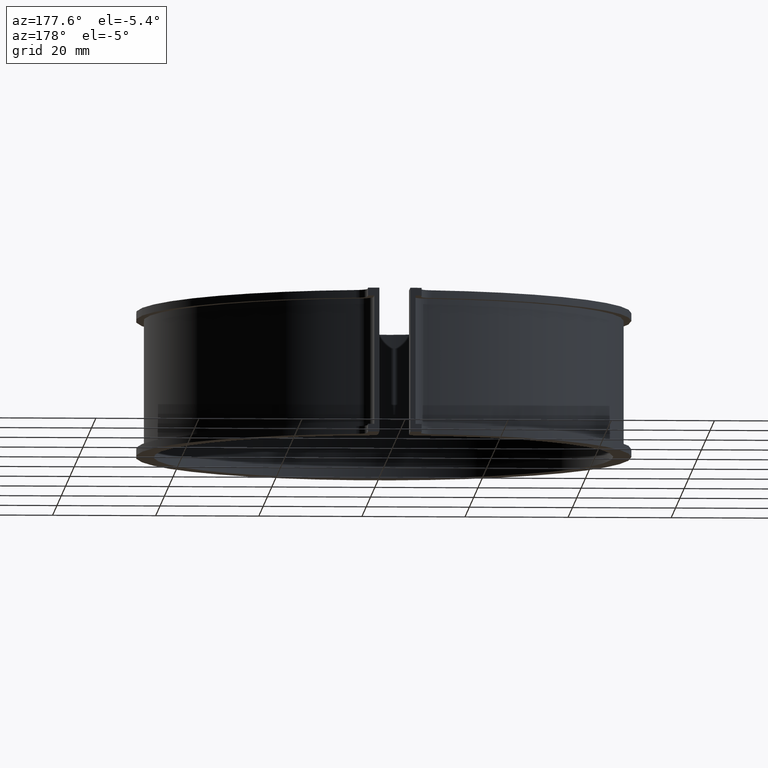
[diagram: clean part render]
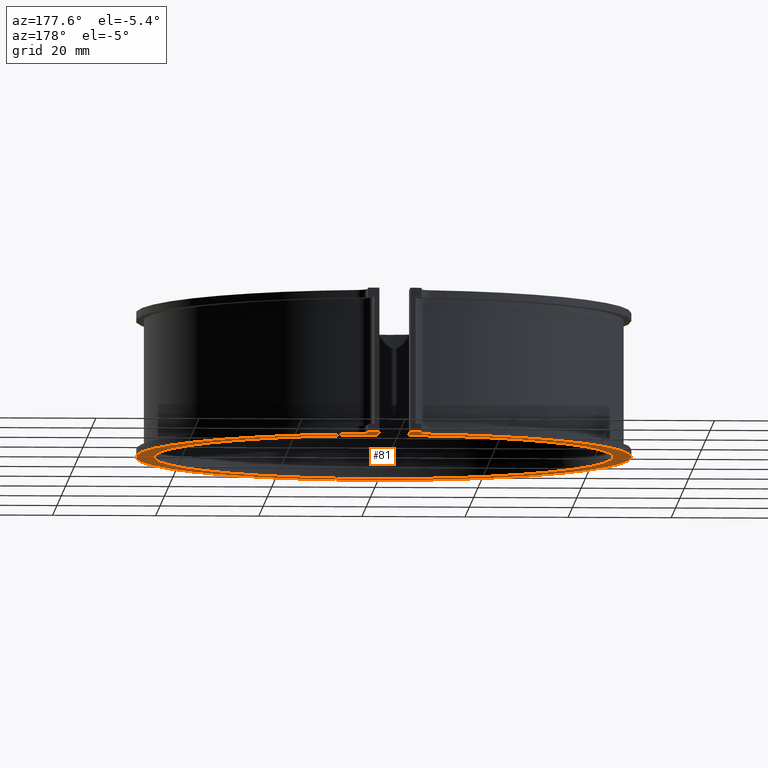
[diagram: same view with one face highlighted and labeled with its STEP entity id]
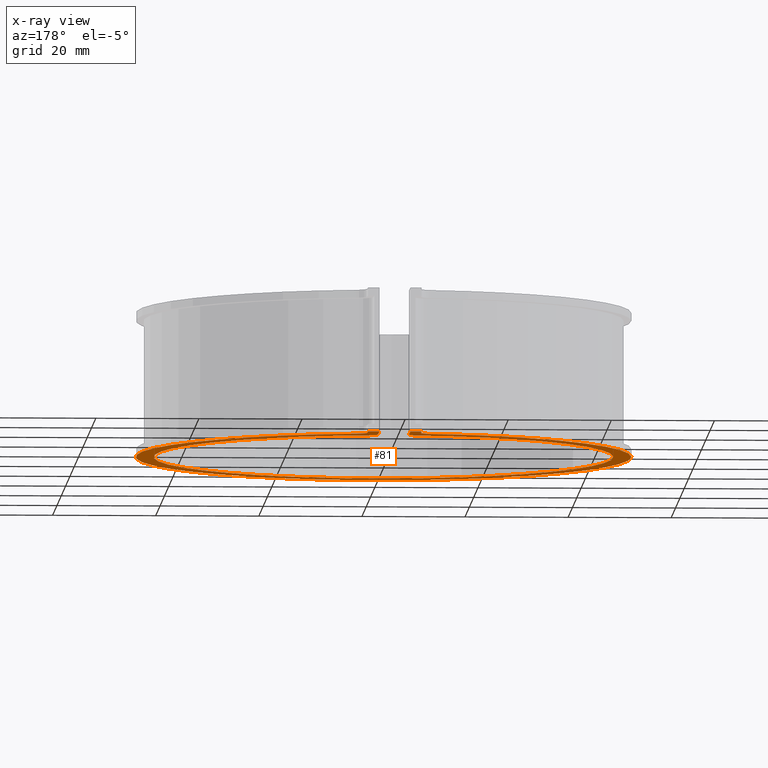
[diagram: x-ray of the same camera — body ghosted, the highlighted face saturated]
A machine part, auxiliary view. The second image highlights one B-rep face of the part: STEP entity #81.
The next image is the same camera in x-ray: the body ghosted, the highlighted face saturated — about 0% of this face is hidden behind the body in this view.
In plain terms, the highlighted planar face has unit normal (0, 0, 1).
Its self-contained STEP definition (entity closure, byte-faithful):
#81 = ADVANCED_FACE( '', ( #114 ), #115, .F. );
#114 = FACE_OUTER_BOUND( '', #166, .T. );
#115 = PLANE( '', #167 );
#166 = EDGE_LOOP( '', ( #260, #261, #262, #263, #264, #265, #266, #267, #268, #269, #270, #271 ) );
#167 = AXIS2_PLACEMENT_3D( '', #272, #273, #274 );
#260 = ORIENTED_EDGE( '', *, *, #436, .F. );
#261 = ORIENTED_EDGE( '', *, *, #446, .T. );
#262 = ORIENTED_EDGE( '', *, *, #460, .T. );
#263 = ORIENTED_EDGE( '', *, *, #461, .T. );
#264 = ORIENTED_EDGE( '', *, *, #462, .T. );
#265 = ORIENTED_EDGE( '', *, *, #463, .T. );
#266 = ORIENTED_EDGE( '', *, *, #464, .F. );
#267 = ORIENTED_EDGE( '', *, *, #465, .F. );
#268 = ORIENTED_EDGE( '', *, *, #456, .F. );
#269 = ORIENTED_EDGE( '', *, *, #466, .F. );
#270 = ORIENTED_EDGE( '', *, *, #432, .F. );
#271 = ORIENTED_EDGE( '', *, *, #467, .F. );
#272 = CARTESIAN_POINT( '', ( 5.00000000000000, 46.2806925185871, -14.0000000000000 ) );
#273 = DIRECTION( '', ( 0.000000000000000, 0.000000000000000, 1.00000000000000 ) );
#274 = DIRECTION( '', ( -0.107411385606873, -0.994214662053428, 0.000000000000000 ) );
#432 = EDGE_CURVE( '', #508, #509, #510, .T. );
#436 = EDGE_CURVE( '', #516, #517, #518, .T. );
#446 = EDGE_CURVE( '', #516, #534, #536, .T. );
#456 = EDGE_CURVE( '', #553, #554, #555, .T. );
#460 = EDGE_CURVE( '', #534, #561, #562, .T. );
#461 = EDGE_CURVE( '', #561, #563, #564, .T. );
#462 = EDGE_CURVE( '', #563, #565, #566, .T. );
#463 = EDGE_CURVE( '', #565, #567, #568, .T. );
#464 = EDGE_CURVE( '', #569, #567, #570, .T. );
#465 = EDGE_CURVE( '', #554, #569, #571, .T. );
#466 = EDGE_CURVE( '', #509, #553, #572, .T. );
#467 = EDGE_CURVE( '', #517, #508, #573, .T. );
#508 = VERTEX_POINT( '', #632 );
#509 = VERTEX_POINT( '', #633 );
#510 = CIRCLE( '', #634, 2.00000000000000 );
#516 = VERTEX_POINT( '', #642 );
#517 = VERTEX_POINT( '', #643 );
#518 = LINE( '', #644, #645 );
#534 = VERTEX_POINT( '', #669 );
#536 = LINE( '', #672, #673 );
#553 = VERTEX_POINT( '', #693 );
#554 = VERTEX_POINT( '', #694 );
#555 = CIRCLE( '', #695, 2.00000000000000 );
#561 = VERTEX_POINT( '', #703 );
#562 = CIRCLE( '', #704, 2.50000000000000 );
#563 = VERTEX_POINT( '', #705 );
#564 = CIRCLE( '', #706, 48.0500000000000 );
#565 = VERTEX_POINT( '', #707 );
#566 = CIRCLE( '', #708, 2.50000000000000 );
#567 = VERTEX_POINT( '', #709 );
#568 = LINE( '', #710, #711 );
#569 = VERTEX_POINT( '', #712 );
#570 = LINE( '', #713, #714 );
#571 = LINE( '', #715, #716 );
#572 = CIRCLE( '', #717, 44.5500000000000 );
#573 = LINE( '', #718, #719 );
#632 = CARTESIAN_POINT( '', ( 2.99999999999999, 46.2806925185870, -14.0000000000000 ) );
#633 = CARTESIAN_POINT( '', ( 4.78517722878625, 44.2922631944802, -14.0000000000000 ) );
#634 = AXIS2_PLACEMENT_3D( '', #792, #793, #794 );
#642 = CARTESIAN_POINT( '', ( 5.19999999999998, 52.5500000000000, -14.0000000000000 ) );
#643 = CARTESIAN_POINT( '', ( 2.99999999999999, 52.5500000000000, -14.0000000000000 ) );
#644 = CARTESIAN_POINT( '', ( 4.00000000000002, 52.5500000000000, -14.0000000000000 ) );
#645 = VECTOR( '', #800, 1000.00000000000 );
#669 = CARTESIAN_POINT( '', ( 5.20000000000000, 49.9601090871507, -14.0000000000000 ) );
#672 = CARTESIAN_POINT( '', ( 5.20000000000000, 52.5500000000000, -14.0000000000000 ) );
#673 = VECTOR( '', #810, 1000.00000000000 );
#693 = CARTESIAN_POINT( '', ( -4.78517722878559, 44.2922631944803, -14.0000000000000 ) );
#694 = CARTESIAN_POINT( '', ( -2.99999999999934, 46.2806925185871, -14.0000000000000 ) );
#695 = AXIS2_PLACEMENT_3D( '', #832, #833, #834 );
#703 = CARTESIAN_POINT( '', ( 7.31918892185955, 47.4892827228010, -14.0000000000000 ) );
#704 = AXIS2_PLACEMENT_3D( '', #840, #841, #842 );
#705 = CARTESIAN_POINT( '', ( -7.31918892185955, 47.4892827228010, -14.0000000000000 ) );
#706 = AXIS2_PLACEMENT_3D( '', #843, #844, #845 );
#707 = CARTESIAN_POINT( '', ( -5.20000000000000, 49.9601090871507, -14.0000000000000 ) );
#708 = AXIS2_PLACEMENT_3D( '', #846, #847, #848 );
#709 = CARTESIAN_POINT( '', ( -5.20000000000000, 52.5500000000000, -14.0000000000000 ) );
#710 = CARTESIAN_POINT( '', ( -5.20000000000000, 49.9601090871508, -14.0000000000000 ) );
#711 = VECTOR( '', #849, 1000.00000000000 );
#712 = CARTESIAN_POINT( '', ( -2.99999999999934, 52.5500000000000, -14.0000000000000 ) );
#713 = CARTESIAN_POINT( '', ( -2.99999999999932, 52.5500000000000, -14.0000000000000 ) );
#714 = VECTOR( '', #850, 1000.00000000000 );
#715 = CARTESIAN_POINT( '', ( -2.99999999999934, 46.2806925185871, -14.0000000000000 ) );
#716 = VECTOR( '', #851, 1000.00000000000 );
#717 = AXIS2_PLACEMENT_3D( '', #852, #853, #854 );
#718 = CARTESIAN_POINT( '', ( 2.99999999999999, 52.5500000000000, -14.0000000000000 ) );
#719 = VECTOR( '', #855, 1000.00000000000 );
#792 = CARTESIAN_POINT( '', ( 5.00000000000000, 46.2806925185871, -14.0000000000000 ) );
#793 = DIRECTION( '', ( 0.000000000000000, 0.000000000000000, 1.00000000000000 ) );
#794 = DIRECTION( '', ( -1.00000000000000, -1.16573417585641E-015, 0.000000000000000 ) );
#800 = DIRECTION( '', ( -1.00000000000000, -1.38777878078145E-017, 0.000000000000000 ) );
#810 = DIRECTION( '', ( -2.77555756156289E-017, -1.00000000000000, 0.000000000000000 ) );
#832 = CARTESIAN_POINT( '', ( -4.99999999999933, 46.2806925185871, -14.0000000000000 ) );
#833 = DIRECTION( '', ( 0.000000000000000, 0.000000000000000, 1.00000000000000 ) );
#834 = DIRECTION( '', ( 1.00000000000000, 1.34614541735800E-015, 0.000000000000000 ) );
#840 = CARTESIAN_POINT( '', ( 7.70000000000000, 49.9601090871507, -14.0000000000000 ) );
#841 = DIRECTION( '', ( 0.000000000000000, 0.000000000000000, 1.00000000000000 ) );
#842 = DIRECTION( '', ( -1.00000000000000, 1.74860126378462E-015, 0.000000000000000 ) );
#843 = CARTESIAN_POINT( '', ( -8.67361737988404E-016, 6.93889390390723E-015, -14.0000000000000 ) );
#844 = DIRECTION( '', ( 0.000000000000000, 0.000000000000000, -1.00000000000000 ) );
#845 = DIRECTION( '', ( 1.00000000000000, 0.000000000000000, 0.000000000000000 ) );
#846 = CARTESIAN_POINT( '', ( -7.70000000000000, 49.9601090871507, -14.0000000000000 ) );
#847 = DIRECTION( '', ( 0.000000000000000, 0.000000000000000, 1.00000000000000 ) );
#848 = DIRECTION( '', ( 1.00000000000000, -1.60982338570648E-015, 0.000000000000000 ) );
#849 = DIRECTION( '', ( 2.77555756156289E-017, 1.00000000000000, 0.000000000000000 ) );
#850 = DIRECTION( '', ( -1.00000000000000, -1.38777878078145E-017, 0.000000000000000 ) );
#851 = DIRECTION( '', ( 4.16333634234434E-017, 1.00000000000000, 0.000000000000000 ) );
#852 = CARTESIAN_POINT( '', ( 8.67361737988404E-016, 1.38777878078145E-014, -14.0000000000000 ) );
#853 = DIRECTION( '', ( 0.000000000000000, 0.000000000000000, -1.00000000000000 ) );
#854 = DIRECTION( '', ( 1.00000000000000, 1.38777878078145E-017, 0.000000000000000 ) );
#855 = DIRECTION( '', ( -4.16333634234434E-017, -1.00000000000000, 0.000000000000000 ) );